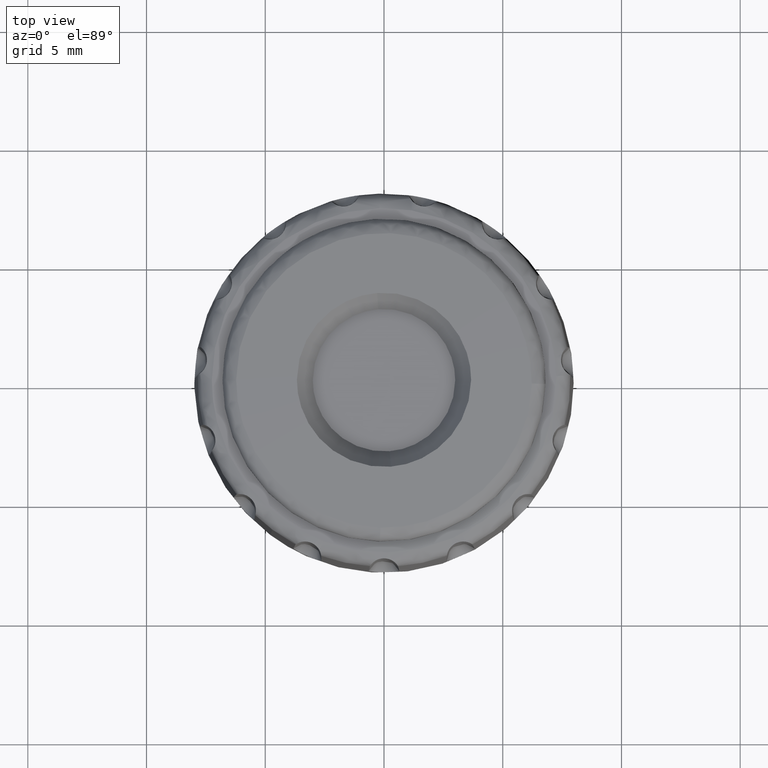
[diagram: clean part render]
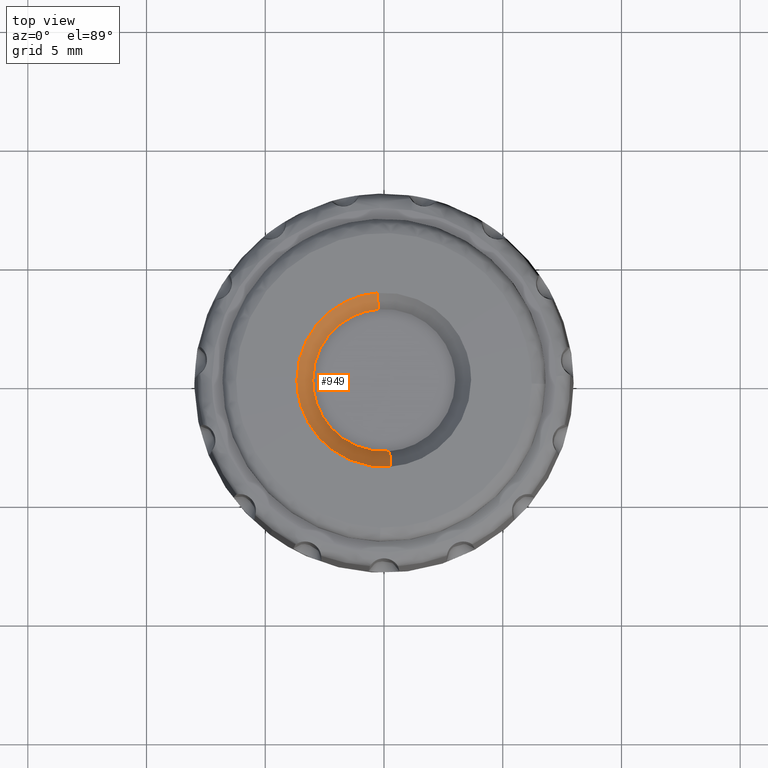
[diagram: same view with one face highlighted and labeled with its STEP entity id]
A machine part, top view. The second image highlights one B-rep face of the part: STEP entity #949.
In plain terms, the highlighted face is a freeform B-spline surface patch.
Its self-contained STEP definition (entity closure, byte-faithful):
#851=CARTESIAN_POINT('',(-0.234065476602172,2.974083867377481,9.976121834305907));
#852=CARTESIAN_POINT('',(-3.208149343979652,2.740018390775310,9.976121834305907));
#853=CARTESIAN_POINT('',(-2.974083867377481,-0.234065476602172,9.976121834305907));
#854=CARTESIAN_POINT('',(-2.740018390775310,-3.208149343979652,9.976121834305907));
#855=CARTESIAN_POINT('',(0.234065476602172,-2.974083867377481,9.976121834305907));
#856=CARTESIAN_POINT('',(-0.289194316283973,3.674562191242194,10.979601747600110));
#857=CARTESIAN_POINT('',(-3.963756507526167,3.385367874958221,10.979601747600105));
#858=CARTESIAN_POINT('',(-3.674562191242194,-0.289194316283973,10.979601747600110));
#859=CARTESIAN_POINT('',(-3.385367874958221,-3.963756507526167,10.979601747600105));
#860=CARTESIAN_POINT('',(0.289194316283973,-3.674562191242194,10.979601747600110));
#868=(BOUNDED_SURFACE()B_SPLINE_SURFACE(2,1,((#851,#856),(#852,#857),(#853,#858),(#854,#859),(#855,#860)),.UNSPECIFIED.,.F.,.F.,.U.)B_SPLINE_SURFACE_WITH_KNOTS((3,2,3),(2,2),(0.0,6.107039947620632,12.214079895241261),(0.0,1.0),.UNSPECIFIED.)GEOMETRIC_REPRESENTATION_ITEM()RATIONAL_B_SPLINE_SURFACE(((1.0,1.0),(0.707106781186548,0.707106781186548),(1.0,1.0),(0.707106781186548,0.707106781186548),(1.0,1.0)))REPRESENTATION_ITEM('')SURFACE());
#869=CARTESIAN_POINT('',(-3.0,0.0,10.0));
#870=VERTEX_POINT('',#869);
#871=CARTESIAN_POINT('',(-0.235377287198822,2.990752001199907,10.000000000002469));
#872=VERTEX_POINT('',#871);
#873=CARTESIAN_POINT('',(-3.0,0.0,10.0));
#874=CARTESIAN_POINT('',(-3.000000000000000,2.773171474946438,10.0));
#875=CARTESIAN_POINT('',(-0.235377287198822,2.990752001199907,10.000000000002469));
#883=(BOUNDED_CURVE()B_SPLINE_CURVE(2,(#873,#874,#875),.UNSPECIFIED.,.F.,.U.)B_SPLINE_CURVE_WITH_KNOTS((3,3),(0.0,0.236331300631030),.UNSPECIFIED.)CURVE()GEOMETRIC_REPRESENTATION_ITEM()RATIONAL_B_SPLINE_CURVE((1.0,0.723120658607232,0.969723356168191))REPRESENTATION_ITEM(''));
#884=EDGE_CURVE('',#870,#872,#883,.T.);
#885=ORIENTED_EDGE('',*,*,#884,.T.);
#886=CARTESIAN_POINT('',(-0.287849710442218,3.657477354074904,10.955126627764329));
#887=VERTEX_POINT('',#886);
#888=CARTESIAN_POINT('',(-0.235377287198822,2.990752001199907,10.000000000002469));
#889=CARTESIAN_POINT('',(-0.287849710442218,3.657477354074904,10.955126627764329));
#890=QUASI_UNIFORM_CURVE('',1,(#888,#889),.UNSPECIFIED.,.F.,.U.);
#891=EDGE_CURVE('',#872,#887,#890,.T.);
#892=ORIENTED_EDGE('',*,*,#891,.T.);
#893=CARTESIAN_POINT('',(-3.668787000000000,0.0,10.955126627763660));
#894=VERTEX_POINT('',#893);
#895=CARTESIAN_POINT('',(-3.668787000000000,0.0,10.955126627763660));
#896=CARTESIAN_POINT('',(-3.668786999999999,3.391391818711599,10.955126627763660));
#897=CARTESIAN_POINT('',(-0.287849710442218,3.657477354074904,10.955126627764333));
#905=(BOUNDED_CURVE()B_SPLINE_CURVE(2,(#895,#896,#897),.UNSPECIFIED.,.F.,.U.)B_SPLINE_CURVE_WITH_KNOTS((3,3),(0.0,0.236331300632382),.UNSPECIFIED.)CURVE()GEOMETRIC_REPRESENTATION_ITEM()RATIONAL_B_SPLINE_CURVE((1.0,0.723120658605648,0.969723356171012))REPRESENTATION_ITEM(''));
#906=EDGE_CURVE('',#894,#887,#905,.T.);
#907=ORIENTED_EDGE('',*,*,#906,.F.);
#908=CARTESIAN_POINT('',(0.287849710442219,-3.657477354074904,10.955126627764329));
#909=VERTEX_POINT('',#908);
#910=CARTESIAN_POINT('',(0.287849710442219,-3.657477354074904,10.955126627764324));
#911=CARTESIAN_POINT('',(0.144147033822474,-3.668787000000000,10.955126627763660));
#912=CARTESIAN_POINT('',(0.0,-3.668787000000000,10.955126627763660));
#913=CARTESIAN_POINT('',(-3.668787000000000,-3.668787000000000,10.955126627763660));
#914=CARTESIAN_POINT('',(-3.668787000000000,0.0,10.955126627763660));
#922=(BOUNDED_CURVE()B_SPLINE_CURVE(2,(#910,#911,#912,#913,#914),.UNSPECIFIED.,.F.,.U.)B_SPLINE_CURVE_WITH_KNOTS((3,2,3),(0.736331300632382,0.750000000000000,1.0),.UNSPECIFIED.)CURVE()GEOMETRIC_REPRESENTATION_ITEM()RATIONAL_B_SPLINE_CURVE((0.969723356171012,0.983986122580900,1.0,0.707106781186548,1.0))REPRESENTATION_ITEM(''));
#923=EDGE_CURVE('',#909,#894,#922,.T.);
#924=ORIENTED_EDGE('',*,*,#923,.F.);
#925=CARTESIAN_POINT('',(0.235377287198822,-2.990752001199907,10.000000000002469));
#926=VERTEX_POINT('',#925);
#927=CARTESIAN_POINT('',(0.235377287198822,-2.990752001199907,10.000000000002469));
#928=CARTESIAN_POINT('',(0.287849710442219,-3.657477354074904,10.955126627764329));
#929=QUASI_UNIFORM_CURVE('',1,(#927,#928),.UNSPECIFIED.,.F.,.U.);
#930=EDGE_CURVE('',#926,#909,#929,.T.);
#931=ORIENTED_EDGE('',*,*,#930,.F.);
#932=CARTESIAN_POINT('',(0.235377287198822,-2.990752001199906,10.000000000002469));
#933=CARTESIAN_POINT('',(0.117870321038230,-3.0,10.0));
#934=CARTESIAN_POINT('',(0.0,-3.0,10.0));
#935=CARTESIAN_POINT('',(-3.0,-3.0,10.000000000000002));
#936=CARTESIAN_POINT('',(-3.0,0.0,10.0));
#944=(BOUNDED_CURVE()B_SPLINE_CURVE(2,(#932,#933,#934,#935,#936),.UNSPECIFIED.,.F.,.U.)B_SPLINE_CURVE_WITH_KNOTS((3,2,3),(0.736331300631030,0.750000000000000,1.0),.UNSPECIFIED.)CURVE()GEOMETRIC_REPRESENTATION_ITEM()RATIONAL_B_SPLINE_CURVE((0.969723356168191,0.983986122579316,1.0,0.707106781186548,1.0))REPRESENTATION_ITEM(''));
#945=EDGE_CURVE('',#926,#870,#944,.T.);
#946=ORIENTED_EDGE('',*,*,#945,.T.);
#947=EDGE_LOOP('',(#885,#892,#907,#924,#931,#946));
#948=FACE_OUTER_BOUND('',#947,.T.);
#949=ADVANCED_FACE('',(#948),#868,.F.);